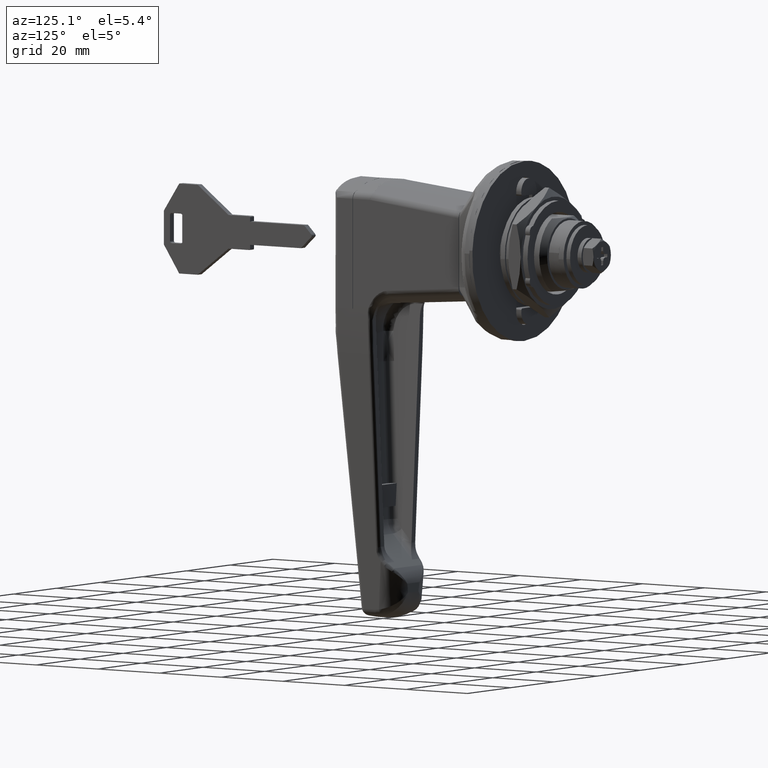
[diagram: clean part render]
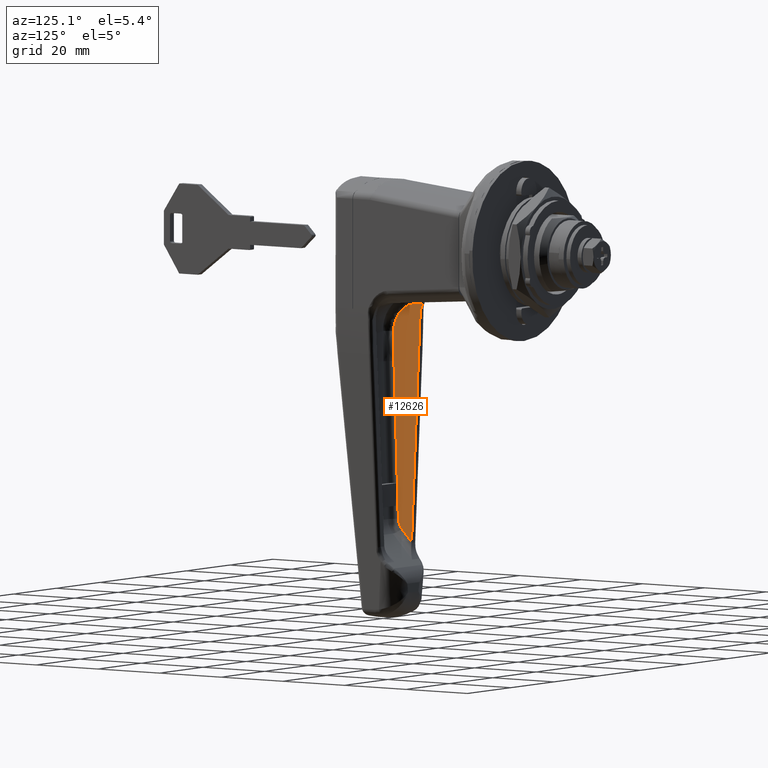
[diagram: same view with one face highlighted and labeled with its STEP entity id]
A machine part, auxiliary view. The second image highlights one B-rep face of the part: STEP entity #12626.
In plain terms, the highlighted face is a freeform B-spline surface patch.
Its self-contained STEP definition (entity closure, byte-faithful):
#10615=CARTESIAN_POINT('',(-40.238236985568399,10.420946354432459,-17.012221978190752));
#10616=VERTEX_POINT('',#10615);
#10655=CARTESIAN_POINT('',(-41.0,10.215993534322040,-20.146701618263052));
#10656=VERTEX_POINT('',#10655);
#10657=CARTESIAN_POINT('',(-41.0,10.215993534322040,-20.146701618262998));
#10658=CARTESIAN_POINT('',(-41.0,10.233863486489080,-19.873404567719941));
#10659=CARTESIAN_POINT('',(-40.983595571781557,10.251551684304260,-19.602887207231170));
#10660=CARTESIAN_POINT('',(-40.919427745951772,10.286580635385700,-19.067166186565309));
#10661=CARTESIAN_POINT('',(-40.871659786545038,10.303921338109220,-18.801963299373199));
#10662=CARTESIAN_POINT('',(-40.776404415901432,10.329670875831670,-18.408158512062482));
#10663=CARTESIAN_POINT('',(-40.740707139031237,10.338210340694840,-18.277558802644940));
#10664=CARTESIAN_POINT('',(-40.661262284384037,10.355200076381321,-18.017723487518129));
#10665=CARTESIAN_POINT('',(-40.617393850594517,10.363670441497980,-17.888180566431060));
#10666=CARTESIAN_POINT('',(-40.474372414603117,10.388764170302659,-17.504405500591879));
#10667=CARTESIAN_POINT('',(-40.363968336849837,10.405070484383611,-17.255022206115100));
#10668=CARTESIAN_POINT('',(-40.238236985568399,10.420946354432459,-17.012221978190698));
#10669=B_SPLINE_CURVE_WITH_KNOTS('',3,(#10657,#10658,#10659,#10660,#10661,#10662,#10663,#10664,#10665,#10666,#10667,#10668),.UNSPECIFIED.,.F.,.U.,(4,2,2,2,2,4),(0.0,0.250000000000000,0.500000000000001,0.624999999999999,0.749999999999998,1.0),.UNSPECIFIED.);
#10670=EDGE_CURVE('',#10656,#10616,#10669,.T.);
#11842=CARTESIAN_POINT('',(-44.384166016320712,6.503920524452701,-76.917900305032092));
#11843=VERTEX_POINT('',#11842);
#11859=CARTESIAN_POINT('',(-45.543004828951801,6.668008507093960,-74.408393773271911));
#11860=VERTEX_POINT('',#11859);
#11861=CARTESIAN_POINT('',(-44.384166016320712,6.503920524452791,-76.917900305032120));
#11862=CARTESIAN_POINT('',(-45.425579747758100,6.572014978929710,-75.876486573594661));
#11863=CARTESIAN_POINT('',(-45.543004828951780,6.668008507094051,-74.408393773271911));
#11871=(BOUNDED_CURVE()B_SPLINE_CURVE(2,(#11861,#11862,#11863),.UNSPECIFIED.,.F.,.U.)CURVE()GEOMETRIC_REPRESENTATION_ITEM()QUASI_UNIFORM_CURVE()RATIONAL_B_SPLINE_CURVE((1.0,0.938411803039720,1.0))REPRESENTATION_ITEM(''));
#11872=EDGE_CURVE('',#11843,#11860,#11871,.T.);
#11928=CARTESIAN_POINT('',(-48.877622741752099,9.394016808543810,-32.717737772722302));
#11929=VERTEX_POINT('',#11928);
#11930=CARTESIAN_POINT('',(-45.543004828951801,6.668008507093960,-74.408393773271911));
#11931=CARTESIAN_POINT('',(-48.877622741752099,9.394016808543810,-32.717737772722302));
#11932=QUASI_UNIFORM_CURVE('',1,(#11930,#11931),.UNSPECIFIED.,.F.,.U.);
#11933=EDGE_CURVE('',#11860,#11929,#11932,.T.);
#11980=CARTESIAN_POINT('',(-49.350375615767298,9.913184262216060,-24.777764990460650));
#11981=VERTEX_POINT('',#11980);
#12009=CARTESIAN_POINT('',(-48.877622741752077,9.394016808543871,-32.717737772722323));
#12010=CARTESIAN_POINT('',(-49.194776529498746,9.653286055246786,-28.752560935196176));
#12011=CARTESIAN_POINT('',(-49.350375615767241,9.913184262216122,-24.777764990460660));
#12019=(BOUNDED_CURVE()B_SPLINE_CURVE(2,(#12009,#12010,#12011),.UNSPECIFIED.,.F.,.U.)CURVE()GEOMETRIC_REPRESENTATION_ITEM()QUASI_UNIFORM_CURVE()RATIONAL_B_SPLINE_CURVE((1.0,0.999793063853632,1.0))REPRESENTATION_ITEM(''));
#12020=EDGE_CURVE('',#11929,#11981,#12019,.T.);
#12175=CARTESIAN_POINT('',(-42.881195931486751,10.407766641232181,-17.213788088215701));
#12176=VERTEX_POINT('',#12175);
#12234=CARTESIAN_POINT('',(-49.350375615767298,9.913184262216060,-24.777764990460650));
#12235=CARTESIAN_POINT('',(-49.368430591960603,9.943341611156244,-24.316548617830790));
#12236=CARTESIAN_POINT('',(-49.343996788663588,9.973138101100894,-23.860851101559248));
#12237=CARTESIAN_POINT('',(-49.246539025863861,10.017316399111900,-23.185203039854080));
#12238=CARTESIAN_POINT('',(-49.203847842382871,10.031955824723831,-22.961312578145598));
#12239=CARTESIAN_POINT('',(-49.124243942220978,10.053782750893310,-22.627498895334359));
#12240=CARTESIAN_POINT('',(-49.095110482276169,10.061036321006281,-22.516565228626529));
#12241=CARTESIAN_POINT('',(-49.031547733190671,10.075498483531600,-22.295385769067959));
#12242=CARTESIAN_POINT('',(-48.997067637580372,10.082713895116999,-22.185035686073238));
#12243=CARTESIAN_POINT('',(-48.813139426031157,10.118307596766160,-21.640677559778400));
#12244=CARTESIAN_POINT('',(-48.628260303076893,10.145538895984560,-21.224211209489219));
#12245=CARTESIAN_POINT('',(-48.295183835539333,10.184548267321560,-20.627614977429602));
#12246=CARTESIAN_POINT('',(-48.174802765474197,10.197243064551509,-20.433465009496992));
#12247=CARTESIAN_POINT('',(-47.979708797919017,10.215806655170830,-20.149559685278589));
#12248=CARTESIAN_POINT('',(-47.912094817413902,10.221928039835911,-20.055941282802252));
#12249=CARTESIAN_POINT('',(-47.772634248244017,10.233942033221719,-19.872203300355881));
#12250=CARTESIAN_POINT('',(-47.701002130130668,10.239817645400480,-19.782343659793838));
#12251=CARTESIAN_POINT('',(-47.333465019710317,10.268547947441130,-19.342952063469109));
#12252=CARTESIAN_POINT('',(-47.009694718501173,10.289477615992389,-19.022860737513771));
#12253=CARTESIAN_POINT('',(-46.478754336461293,10.317743696448609,-18.590568790289151));
#12254=CARTESIAN_POINT('',(-46.294176077330462,10.326640820936040,-18.454499154623630));
#12255=CARTESIAN_POINT('',(-46.005314679418838,10.339157924592060,-18.263066772569339));
#12256=CARTESIAN_POINT('',(-45.907437228544197,10.343173024537730,-18.201661181634961));
#12257=CARTESIAN_POINT('',(-45.709802250388293,10.350839256078819,-18.084416409551721));
#12258=CARTESIAN_POINT('',(-45.609851845131473,10.354498820659950,-18.028448257150270));
#12259=CARTESIAN_POINT('',(-45.104487234957602,10.371936853028510,-17.761756843034728));
#12260=CARTESIAN_POINT('',(-44.682396230765882,10.383160605468101,-17.590104540382079));
#12261=CARTESIAN_POINT('',(-44.131757767546880,10.393663145880060,-17.429482212411141));
#12262=CARTESIAN_POINT('',(-44.020468586063487,10.395585725733181,-17.400078921435291));
#12263=CARTESIAN_POINT('',(-43.795504262273987,10.399065380606460,-17.346862247720271));
#12264=CARTESIAN_POINT('',(-43.682116774373320,10.400617216928270,-17.323128983875399));
#12265=CARTESIAN_POINT('',(-43.341181911593210,10.404681253769169,-17.260974968490540));
#12266=CARTESIAN_POINT('',(-43.112096367980662,10.406615606142370,-17.231391632543971));
#12267=CARTESIAN_POINT('',(-42.881195931486751,10.407766641232181,-17.213788088215750));
#12268=B_SPLINE_CURVE_WITH_KNOTS('',3,(#12234,#12235,#12236,#12237,#12238,#12239,#12240,#12241,#12242,#12243,#12244,#12245,#12246,#12247,#12248,#12249,#12250,#12251,#12252,#12253,#12254,#12255,#12256,#12257,#12258,#12259,#12260,#12261,#12262,#12263,#12264,#12265,#12266,#12267),.UNSPECIFIED.,.F.,.U.,(4,2,2,2,2,2,2,2,2,2,2,2,2,2,2,2,4),(0.0,0.125000000000003,0.187500000000004,0.218750000000006,0.250000000000007,0.375000000000010,0.437500000000012,0.468750000000012,0.500000000000013,0.625000000000015,0.687500000000015,0.718750000000014,0.750000000000014,0.875000000000008,0.906250000000006,0.937500000000005,1.0),.UNSPECIFIED.);
#12269=EDGE_CURVE('',#11981,#12176,#12268,.T.);
#12499=CARTESIAN_POINT('',(-41.0,6.282641572788980,-80.302066321352697));
#12500=VERTEX_POINT('',#12499);
#12501=CARTESIAN_POINT('',(-41.0,6.282641572788980,-80.302066321352697));
#12502=CARTESIAN_POINT('',(-44.384166016320712,6.503920524452701,-76.917900305032092));
#12503=QUASI_UNIFORM_CURVE('',1,(#12501,#12502),.UNSPECIFIED.,.F.,.U.);
#12504=EDGE_CURVE('',#12500,#11843,#12503,.T.);
#12596=CARTESIAN_POINT('',(-42.881195931486751,10.407766641232181,-17.213788088215701));
#12597=CARTESIAN_POINT('',(-42.000207826786323,10.412158353251501,-17.146622718633569));
#12598=CARTESIAN_POINT('',(-41.119221499545127,10.416551580808569,-17.079434170925659));
#12599=CARTESIAN_POINT('',(-40.238236985568399,10.420946354432470,-17.012221978190752));
#12600=QUASI_UNIFORM_CURVE('',3,(#12596,#12597,#12598,#12599),.UNSPECIFIED.,.F.,.U.);
#12601=EDGE_CURVE('',#12176,#10616,#12600,.T.);
#12607=CARTESIAN_POINT('',(-49.811230981290812,6.075933490051391,-83.463390358906977));
#12608=CARTESIAN_POINT('',(-49.811230981290812,10.627654770164011,-13.850892847938731));
#12609=CARTESIAN_POINT('',(-39.782812705336077,6.075933490051391,-83.463390358906977));
#12610=CARTESIAN_POINT('',(-39.782812705336077,10.627654770164011,-13.850892847938731));
#12611=B_SPLINE_SURFACE_WITH_KNOTS('',1,1,((#12607,#12609),(#12608,#12610)),.UNSPECIFIED.,.F.,.F.,.U.,(2,2),(2,2),(0.0,69.761149476814026),(0.0,10.028418275954730),.UNSPECIFIED.);
#12612=ORIENTED_EDGE('',*,*,#12601,.F.);
#12613=ORIENTED_EDGE('',*,*,#12269,.F.);
#12614=ORIENTED_EDGE('',*,*,#12020,.F.);
#12615=ORIENTED_EDGE('',*,*,#11933,.F.);
#12616=ORIENTED_EDGE('',*,*,#11872,.F.);
#12617=ORIENTED_EDGE('',*,*,#12504,.F.);
#12618=CARTESIAN_POINT('',(-41.0,10.215993534322040,-20.146701618263052));
#12619=CARTESIAN_POINT('',(-41.0,6.282641572788980,-80.302066321352697));
#12620=QUASI_UNIFORM_CURVE('',1,(#12618,#12619),.UNSPECIFIED.,.F.,.U.);
#12621=EDGE_CURVE('',#10656,#12500,#12620,.T.);
#12622=ORIENTED_EDGE('',*,*,#12621,.F.);
#12623=ORIENTED_EDGE('',*,*,#10670,.T.);
#12624=EDGE_LOOP('',(#12612,#12613,#12614,#12615,#12616,#12617,#12622,#12623));
#12625=FACE_OUTER_BOUND('',#12624,.T.);
#12626=ADVANCED_FACE('',(#12625),#12611,.F.);